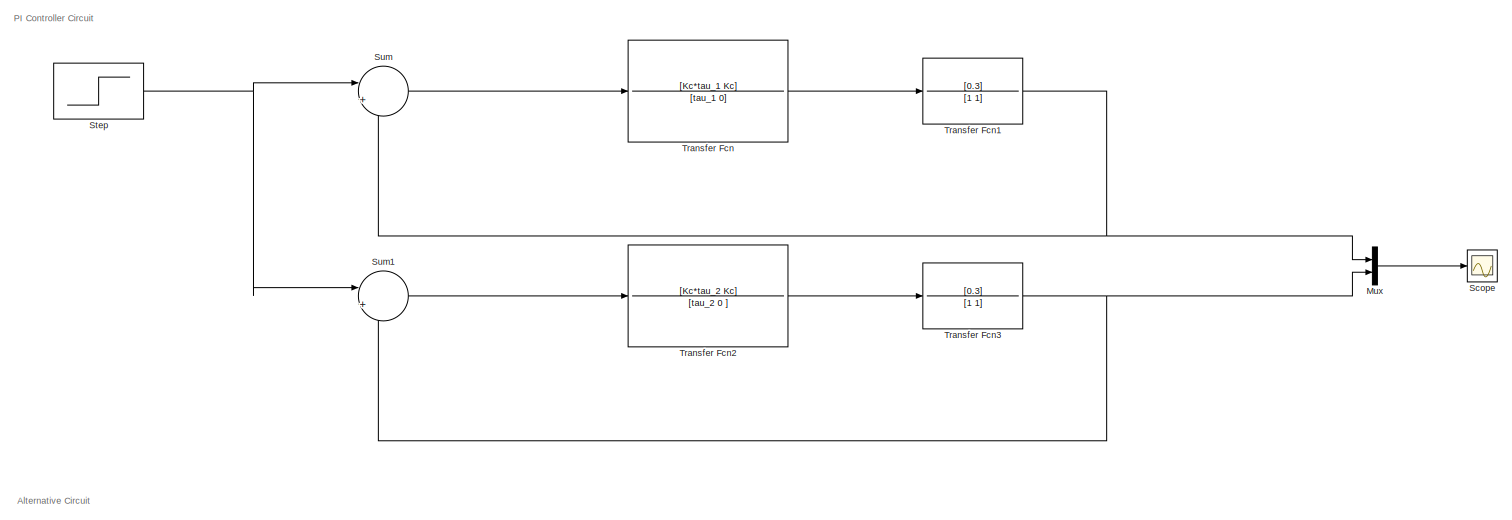
[diagram: root canvas - part 1/2, full width, top band]
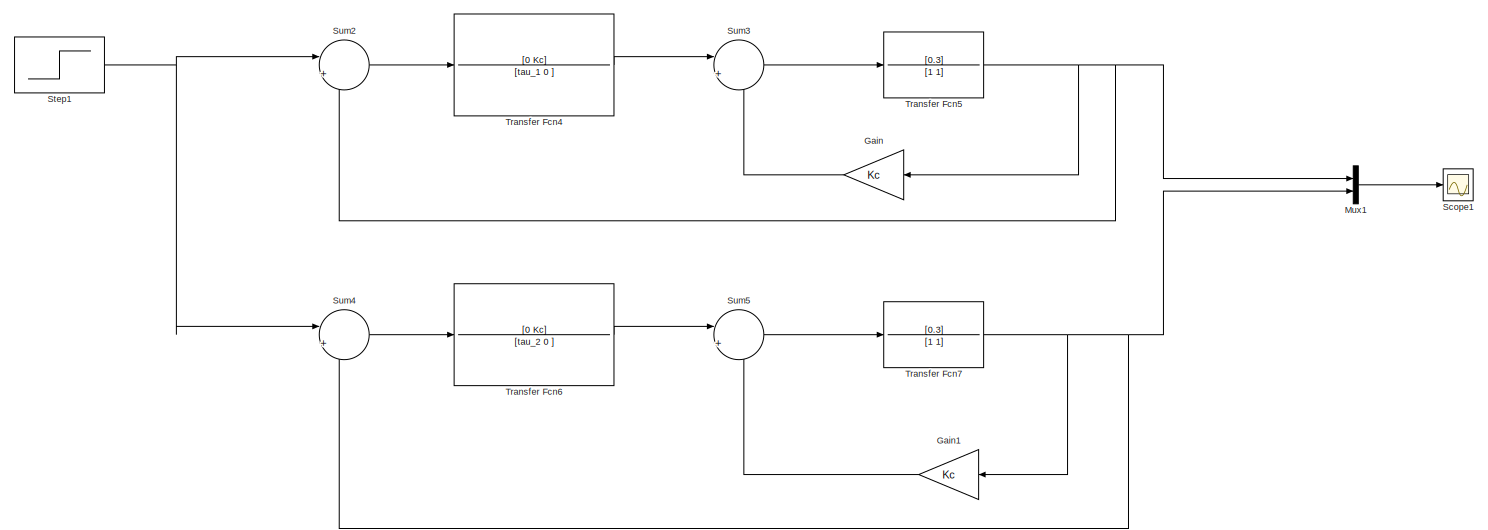
[diagram: root canvas - part 2/2, full width, bottom band]
MODEL slx_2d111f2cad99
KIND model
CONFIG AbsTol = auto
CONFIG EnableMultiTasking = off
CONFIG FixedStep = auto
CONFIG MaxStep = auto
CONFIG MinStep = auto
CONFIG RelTol = 1e-3
CONFIG SampleTimeConstraint = Unconstrained
CONFIG Solver = VariableStepAuto
CONFIG SolverName = VariableStepAuto
CONFIG StartTime = 0.0
CONFIG StopTime = 60
BLOCK [Gain] Gain
  Gain = Kc
  OutDataTypeStr = Inherit: Inherit via internal rule
  ParamDataTypeStr = Inherit: Inherit via internal rule
  SaturateOnIntegerOverflow = off
BLOCK [Gain] Gain1
  Gain = Kc
  OutDataTypeStr = Inherit: Inherit via internal rule
  ParamDataTypeStr = Inherit: Inherit via internal rule
  SaturateOnIntegerOverflow = off
BLOCK [Mux] Mux
  DisplayOption = bar
  Inputs = 2
  Ports = [2, 1]
BLOCK [Mux] Mux1
  DisplayOption = bar
  Inputs = 2
  Ports = [2, 1]
BLOCK [Scope] Scope
  NumInputPorts = 1
  Ports = [1]
  ScopeSpecificationString = Simulink.scopes.TimeScopeBlockCfg('CurrentConfiguration', extmgr.ConfigurationSet(extmgr.Configuration('Core','General UI',true),extmgr.Configuration('Core','Source UI',true),extmgr.Configuration('Sources','WiredSimulink',true),extmgr.Configuration('Visuals','Time Domain',true,'SerializedDisplays',{struct('MinYLimReal','-0.1346','MaxYLimReal','1.21138','YLabelReal','','MinYLimMag','0.00000','MaxYL...<+1403ch>
BLOCK [Scope] Scope1
  NumInputPorts = 1
  Ports = [1]
  ScopeSpecificationString = Simulink.scopes.TimeScopeBlockCfg('CurrentConfiguration', extmgr.ConfigurationSet(extmgr.Configuration('Core','General UI',true),extmgr.Configuration('Core','Source UI',true),extmgr.Configuration('Sources','WiredSimulink',true,'DataLoggingVariableName','ScopeData1'),extmgr.Configuration('Visuals','Time Domain',true,'SerializedDisplays',{struct('MinYLimReal','-0.12756','MaxYLimReal','1.14802','YLab...<+1418ch>
BLOCK [Step] Step
  SampleTime = 0
  Time = 0
BLOCK [Step] Step1
  SampleTime = 0
  Time = 0
BLOCK [Sum] Sum
  IconShape = round
  InputSameDT = off
  Inputs = |+-
  OutDataTypeStr = Inherit: Inherit via internal rule
  Ports = [2, 1]
  SaturateOnIntegerOverflow = off
BLOCK [Sum] Sum1
  IconShape = round
  InputSameDT = off
  Inputs = |+-
  OutDataTypeStr = Inherit: Inherit via internal rule
  Ports = [2, 1]
  SaturateOnIntegerOverflow = off
BLOCK [Sum] Sum2
  IconShape = round
  InputSameDT = off
  Inputs = |+-
  OutDataTypeStr = Inherit: Inherit via internal rule
  Ports = [2, 1]
  SaturateOnIntegerOverflow = off
BLOCK [Sum] Sum3
  IconShape = round
  InputSameDT = off
  Inputs = |+-
  OutDataTypeStr = Inherit: Inherit via internal rule
  Ports = [2, 1]
  SaturateOnIntegerOverflow = off
BLOCK [Sum] Sum4
  IconShape = round
  InputSameDT = off
  Inputs = |+-
  OutDataTypeStr = Inherit: Inherit via internal rule
  Ports = [2, 1]
  SaturateOnIntegerOverflow = off
BLOCK [Sum] Sum5
  IconShape = round
  InputSameDT = off
  Inputs = |+-
  OutDataTypeStr = Inherit: Inherit via internal rule
  Ports = [2, 1]
  SaturateOnIntegerOverflow = off
BLOCK [TransferFcn] Transfer Fcn
  Denominator = [tau_1 0]
  Numerator = [Kc*tau_1 Kc]
BLOCK [TransferFcn] Transfer Fcn1
  Denominator = [1 1]
  Numerator = [0.3]
BLOCK [TransferFcn] Transfer Fcn2
  Denominator = [tau_2 0 ]
  Numerator = [Kc*tau_2 Kc]
BLOCK [TransferFcn] Transfer Fcn3
  Denominator = [1 1]
  Numerator = [0.3]
BLOCK [TransferFcn] Transfer Fcn4
  Denominator = [tau_1 0 ]
  Numerator = [0 Kc]
BLOCK [TransferFcn] Transfer Fcn5
  Denominator = [1 1]
  Numerator = [0.3]
BLOCK [TransferFcn] Transfer Fcn6
  Denominator = [tau_2 0 ]
  Numerator = [0 Kc]
BLOCK [TransferFcn] Transfer Fcn7
  Denominator = [1 1]
  Numerator = [0.3]
ANNOTATION (root): Alternative Circuit
ANNOTATION (root): PI Controller Circuit
LINE Gain1:1 -> Sum5:2
LINE Gain:1 -> Sum3:2
LINE Mux1:1 -> Scope1:1
LINE Mux:1 -> Scope:1
NET Step1:1 -> Sum2:1, Sum4:1
NET Step:1 -> Sum1:1, Sum:1
LINE Sum1:1 -> Transfer Fcn2:1
LINE Sum2:1 -> Transfer Fcn4:1
LINE Sum3:1 -> Transfer Fcn5:1
LINE Sum4:1 -> Transfer Fcn6:1
LINE Sum5:1 -> Transfer Fcn7:1
LINE Sum:1 -> Transfer Fcn:1
NET Transfer Fcn1:1 -> Mux:1, Sum:2
LINE Transfer Fcn2:1 -> Transfer Fcn3:1
NET Transfer Fcn3:1 -> Mux:2, Sum1:2
LINE Transfer Fcn4:1 -> Sum3:1
NET Transfer Fcn5:1 -> Gain:1, Mux1:1, Sum2:2
LINE Transfer Fcn6:1 -> Sum5:1
NET Transfer Fcn7:1 -> Gain1:1, Mux1:2, Sum4:2
LINE Transfer Fcn:1 -> Transfer Fcn1:1
note: NET lines group one-source signal fan-out (src -> all destinations, sorted); 1:1 wires keep LINE
